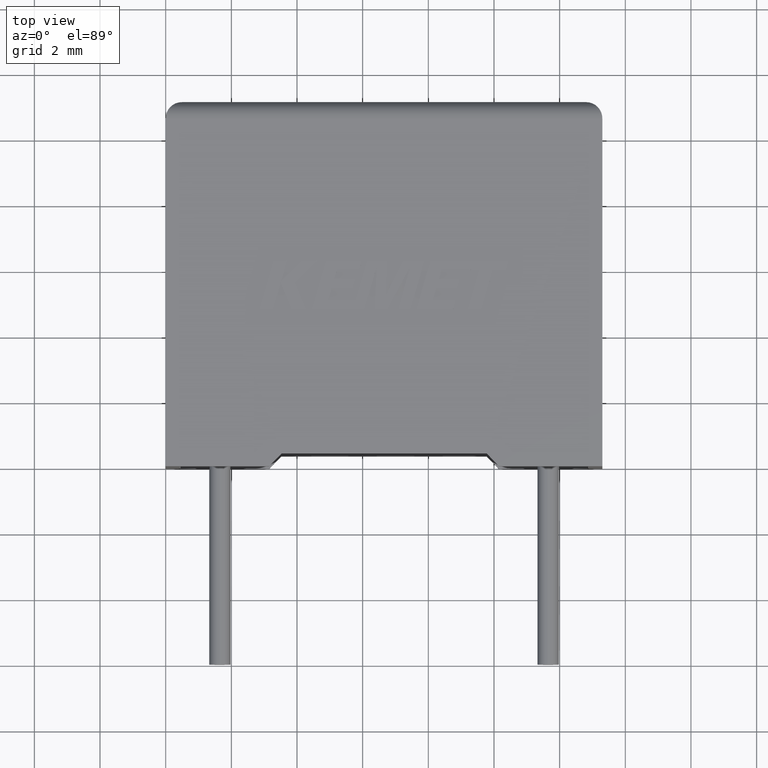
[diagram: clean part render]
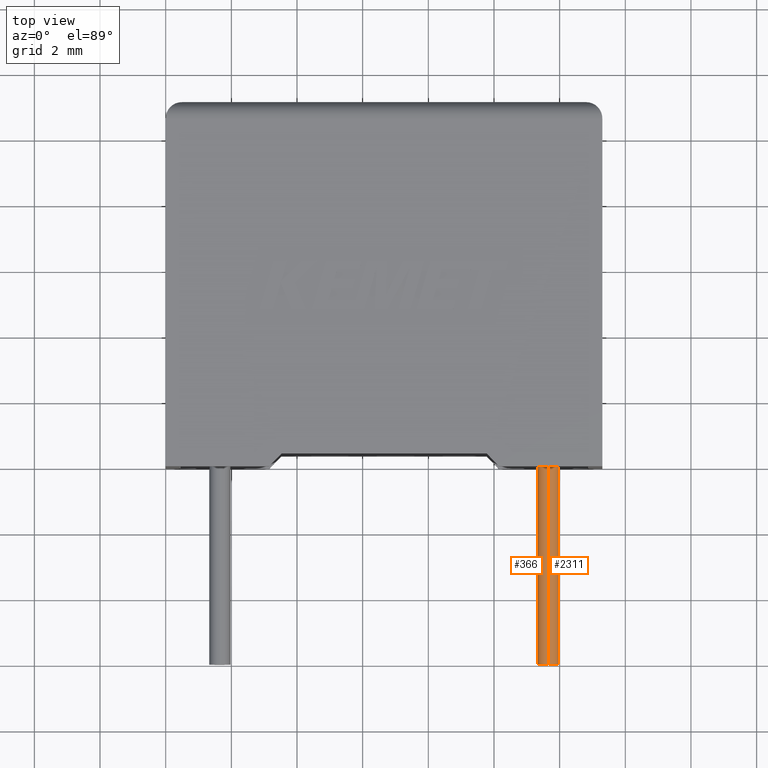
[diagram: same view with one multi-face feature highlighted, each face labeled with its STEP entity id]
A machine part, top view. The highlighted faces form ONE feature: a constant-radius fillet chain: 2 tangent blend faces with common blend radius 0.325 mm. The faces share edges in the B-rep.
Their STEP definitions:
[1] entity #366 (Cylinder):
#82 = CARTESIAN_POINT ( 'NONE',  ( 11.65000000000000036, 0.7499999999999997780, 2.925000000000000711 ) ) ;
#95 = ORIENTED_EDGE ( 'NONE', *, *, #840, .F. ) ;
#281 = VERTEX_POINT ( 'NONE', #1487 ) ;
#366 = ADVANCED_FACE ( 'NONE', ( #2955 ), #2248, .T. ) ;
#607 = EDGE_CURVE ( 'NONE', #1572, #2450, #1612, .T. ) ;
#666 = LINE ( 'NONE', #1370, #1766 ) ;
#718 = DIRECTION ( 'NONE',  ( -0.000000000000000000, 1.000000000000000000, -0.000000000000000000 ) ) ;
#726 = CARTESIAN_POINT ( 'NONE',  ( 11.65000000000000036, -6.000000000000000000, 2.925000000000000711 ) ) ;
#797 = AXIS2_PLACEMENT_3D ( 'NONE', #949, #1361, #904 ) ;
#840 = EDGE_CURVE ( 'NONE', #2537, #2450, #666, .T. ) ;
#904 = DIRECTION ( 'NONE',  ( 0.000000000000000000, 0.000000000000000000, -1.000000000000000000 ) ) ;
#949 = CARTESIAN_POINT ( 'NONE',  ( 11.65000000000000036, -6.000000000000000000, 2.600000000000000089 ) ) ;
#1046 = DIRECTION ( 'NONE',  ( 0.000000000000000000, -1.000000000000000000, 0.000000000000000000 ) ) ;
#1217 = EDGE_CURVE ( 'NONE', #281, #1572, #1969, .T. ) ;
#1222 = DIRECTION ( 'NONE',  ( 0.000000000000000000, 0.000000000000000000, -1.000000000000000000 ) ) ;
#1361 = DIRECTION ( 'NONE',  ( -0.000000000000000000, 1.000000000000000000, -0.000000000000000000 ) ) ;
#1370 = CARTESIAN_POINT ( 'NONE',  ( 11.65000000000000036, -6.000000000000000000, 2.274999999999999467 ) ) ;
#1387 = ORIENTED_EDGE ( 'NONE', *, *, #1217, .T. ) ;
#1431 = DIRECTION ( 'NONE',  ( -0.000000000000000000, 1.000000000000000000, -0.000000000000000000 ) ) ;
#1487 = CARTESIAN_POINT ( 'NONE',  ( 11.65000000000000036, -6.000000000000000000, 2.925000000000000711 ) ) ;
#1508 = CARTESIAN_POINT ( 'NONE',  ( 11.65000000000000036, -6.000000000000000000, 2.274999999999999467 ) ) ;
#1516 = VECTOR ( 'NONE', #1431, 1000.000000000000000 ) ;
#1572 = VERTEX_POINT ( 'NONE', #82 ) ;
#1612 = CIRCLE ( 'NONE', #2480, 0.3250000000000006217 ) ;
#1699 = ORIENTED_EDGE ( 'NONE', *, *, #607, .T. ) ;
#1766 = VECTOR ( 'NONE', #718, 1000.000000000000000 ) ;
#1786 = DIRECTION ( 'NONE',  ( 0.000000000000000000, 0.000000000000000000, 1.000000000000000000 ) ) ;
#1822 = AXIS2_PLACEMENT_3D ( 'NONE', #2986, #2502, #1786 ) ;
#1852 = EDGE_LOOP ( 'NONE', ( #95, #3053, #1387, #1699 ) ) ;
#1857 = CARTESIAN_POINT ( 'NONE',  ( 11.65000000000000036, 0.7499999999999997780, 2.274999999999999467 ) ) ;
#1969 = LINE ( 'NONE', #726, #1516 ) ;
#2167 = EDGE_CURVE ( 'NONE', #2537, #281, #2977, .T. ) ;
#2224 = CARTESIAN_POINT ( 'NONE',  ( 11.65000000000000036, 0.7499999999999997780, 2.600000000000000089 ) ) ;
#2248 = CYLINDRICAL_SURFACE ( 'NONE', #1822, 0.3250000000000006217 ) ;
#2450 = VERTEX_POINT ( 'NONE', #1857 ) ;
#2480 = AXIS2_PLACEMENT_3D ( 'NONE', #2224, #1046, #1222 ) ;
#2502 = DIRECTION ( 'NONE',  ( -0.000000000000000000, 1.000000000000000000, -0.000000000000000000 ) ) ;
#2537 = VERTEX_POINT ( 'NONE', #1508 ) ;
#2955 = FACE_OUTER_BOUND ( 'NONE', #1852, .T. ) ;
#2977 = CIRCLE ( 'NONE', #797, 0.3250000000000006217 ) ;
#2986 = CARTESIAN_POINT ( 'NONE',  ( 11.65000000000000036, -6.000000000000000000, 2.600000000000000089 ) ) ;
#3053 = ORIENTED_EDGE ( 'NONE', *, *, #2167, .T. ) ;
[2] entity #2311 (Cylinder):
#82 = CARTESIAN_POINT ( 'NONE',  ( 11.65000000000000036, 0.7499999999999997780, 2.925000000000000711 ) ) ;
#125 = EDGE_CURVE ( 'NONE', #281, #2537, #2122, .T. ) ;
#281 = VERTEX_POINT ( 'NONE', #1487 ) ;
#298 = DIRECTION ( 'NONE',  ( -0.000000000000000000, 1.000000000000000000, -0.000000000000000000 ) ) ;
#326 = DIRECTION ( 'NONE',  ( 0.000000000000000000, -1.000000000000000000, 0.000000000000000000 ) ) ;
#419 = ORIENTED_EDGE ( 'NONE', *, *, #657, .T. ) ;
#523 = FACE_OUTER_BOUND ( 'NONE', #2639, .T. ) ;
#537 = CARTESIAN_POINT ( 'NONE',  ( 11.65000000000000036, -6.000000000000000000, 2.600000000000000089 ) ) ;
#657 = EDGE_CURVE ( 'NONE', #2450, #1572, #1988, .T. ) ;
#666 = LINE ( 'NONE', #1370, #1766 ) ;
#718 = DIRECTION ( 'NONE',  ( -0.000000000000000000, 1.000000000000000000, -0.000000000000000000 ) ) ;
#726 = CARTESIAN_POINT ( 'NONE',  ( 11.65000000000000036, -6.000000000000000000, 2.925000000000000711 ) ) ;
#840 = EDGE_CURVE ( 'NONE', #2537, #2450, #666, .T. ) ;
#1075 = AXIS2_PLACEMENT_3D ( 'NONE', #1743, #1360, #2936 ) ;
#1217 = EDGE_CURVE ( 'NONE', #281, #1572, #1969, .T. ) ;
#1360 = DIRECTION ( 'NONE',  ( -0.000000000000000000, 1.000000000000000000, -0.000000000000000000 ) ) ;
#1370 = CARTESIAN_POINT ( 'NONE',  ( 11.65000000000000036, -6.000000000000000000, 2.274999999999999467 ) ) ;
#1431 = DIRECTION ( 'NONE',  ( -0.000000000000000000, 1.000000000000000000, -0.000000000000000000 ) ) ;
#1485 = DIRECTION ( 'NONE',  ( 0.000000000000000000, 0.000000000000000000, -1.000000000000000000 ) ) ;
#1487 = CARTESIAN_POINT ( 'NONE',  ( 11.65000000000000036, -6.000000000000000000, 2.925000000000000711 ) ) ;
#1499 = AXIS2_PLACEMENT_3D ( 'NONE', #537, #298, #2164 ) ;
#1508 = CARTESIAN_POINT ( 'NONE',  ( 11.65000000000000036, -6.000000000000000000, 2.274999999999999467 ) ) ;
#1516 = VECTOR ( 'NONE', #1431, 1000.000000000000000 ) ;
#1541 = ORIENTED_EDGE ( 'NONE', *, *, #1217, .F. ) ;
#1572 = VERTEX_POINT ( 'NONE', #82 ) ;
#1743 = CARTESIAN_POINT ( 'NONE',  ( 11.65000000000000036, -6.000000000000000000, 2.600000000000000089 ) ) ;
#1766 = VECTOR ( 'NONE', #718, 1000.000000000000000 ) ;
#1857 = CARTESIAN_POINT ( 'NONE',  ( 11.65000000000000036, 0.7499999999999997780, 2.274999999999999467 ) ) ;
#1928 = CARTESIAN_POINT ( 'NONE',  ( 11.65000000000000036, 0.7499999999999997780, 2.600000000000000089 ) ) ;
#1969 = LINE ( 'NONE', #726, #1516 ) ;
#1988 = CIRCLE ( 'NONE', #2366, 0.3250000000000006217 ) ;
#2122 = CIRCLE ( 'NONE', #1075, 0.3250000000000006217 ) ;
#2164 = DIRECTION ( 'NONE',  ( 0.000000000000000000, 0.000000000000000000, 1.000000000000000000 ) ) ;
#2311 = ADVANCED_FACE ( 'NONE', ( #523 ), #2898, .T. ) ;
#2366 = AXIS2_PLACEMENT_3D ( 'NONE', #1928, #326, #1485 ) ;
#2450 = VERTEX_POINT ( 'NONE', #1857 ) ;
#2537 = VERTEX_POINT ( 'NONE', #1508 ) ;
#2548 = ORIENTED_EDGE ( 'NONE', *, *, #840, .T. ) ;
#2639 = EDGE_LOOP ( 'NONE', ( #2697, #2548, #419, #1541 ) ) ;
#2697 = ORIENTED_EDGE ( 'NONE', *, *, #125, .T. ) ;
#2898 = CYLINDRICAL_SURFACE ( 'NONE', #1499, 0.3250000000000006217 ) ;
#2936 = DIRECTION ( 'NONE',  ( 0.000000000000000000, 0.000000000000000000, -1.000000000000000000 ) ) ;